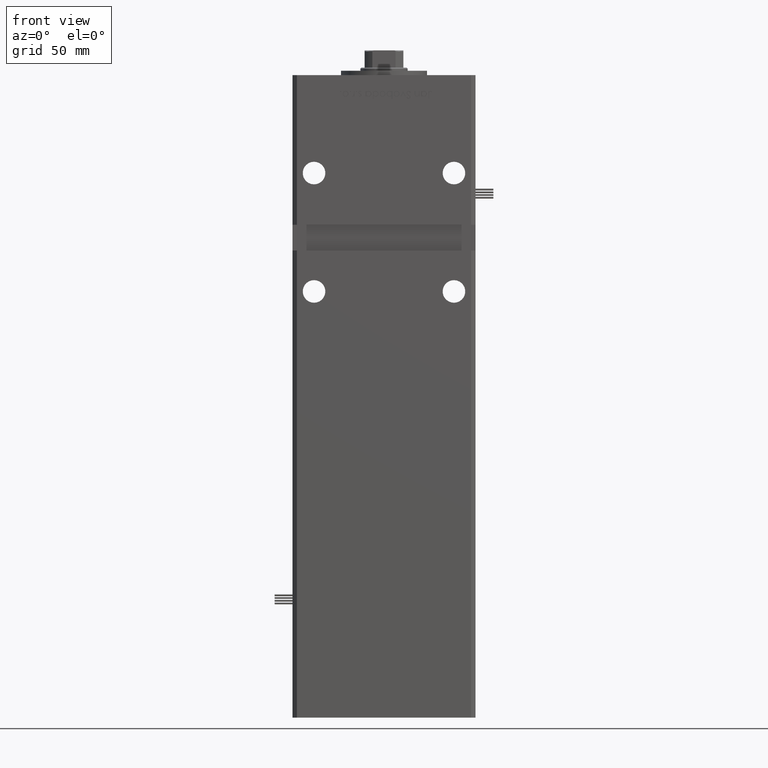
[diagram: clean part render]
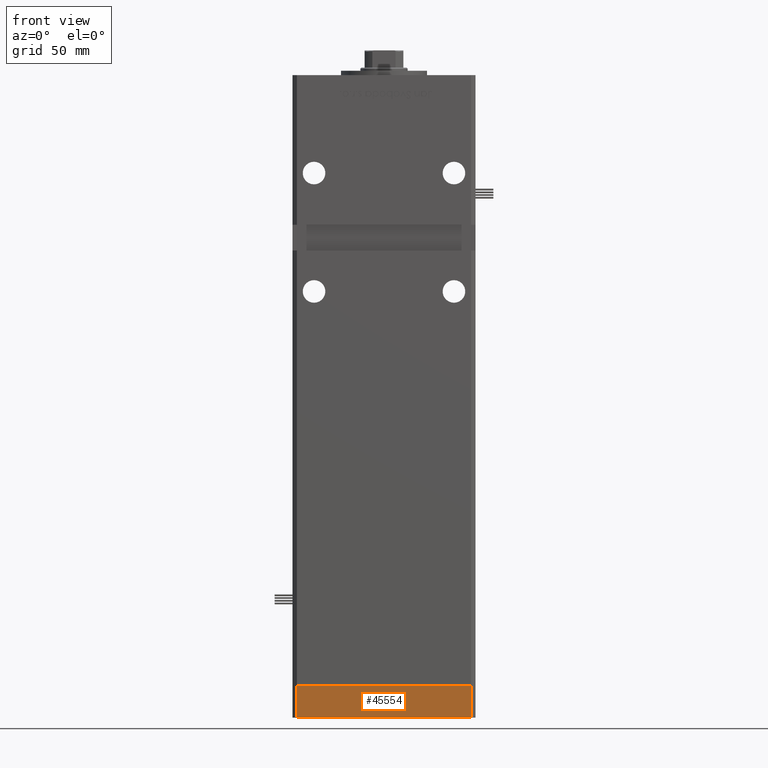
[diagram: same view with one face highlighted and labeled with its STEP entity id]
A machine part, front view. The second image highlights one B-rep face of the part: STEP entity #45554.
In plain terms, the highlighted planar face has unit normal (0, -1, -0).
Its self-contained STEP definition (entity closure, byte-faithful):
#924 = AXIS2_PLACEMENT_3D ( 'NONE', #45963, #37161, #41141 ) ;
#1198 = CARTESIAN_POINT ( 'NONE',  ( 40.50000000000000000, -37.50000000000000711, 0.000000000000000000 ) ) ;
#2256 = PLANE ( 'NONE',  #924 ) ;
#4447 = LINE ( 'NONE', #26303, #13938 ) ;
#7375 = VERTEX_POINT ( 'NONE', #46990 ) ;
#10950 = EDGE_CURVE ( 'NONE', #39779, #7375, #53250, .T. ) ;
#11338 = ORIENTED_EDGE ( 'NONE', *, *, #40592, .F. ) ;
#12088 = VECTOR ( 'NONE', #48841, 1000.000000000000000 ) ;
#13381 = LINE ( 'NONE', #53377, #12088 ) ;
#13938 = VECTOR ( 'NONE', #18354, 1000.000000000000000 ) ;
#14460 = VERTEX_POINT ( 'NONE', #35279 ) ;
#18354 = DIRECTION ( 'NONE',  ( 0.000000000000000000, 0.000000000000000000, 1.000000000000000000 ) ) ;
#26303 = CARTESIAN_POINT ( 'NONE',  ( 40.50000000000000000, -37.50000000000000711, -15.00000000000000000 ) ) ;
#26573 = CARTESIAN_POINT ( 'NONE',  ( -40.49999999999999289, -37.50000000000002132, -15.00000000000000000 ) ) ;
#29203 = CARTESIAN_POINT ( 'NONE',  ( -40.49999999999999289, -37.50000000000002132, -15.00000000000000000 ) ) ;
#31652 = DIRECTION ( 'NONE',  ( 1.000000000000000000, 1.713307136767217096E-16, 0.000000000000000000 ) ) ;
#34976 = DIRECTION ( 'NONE',  ( 1.000000000000000000, 1.713307136767217096E-16, 0.000000000000000000 ) ) ;
#35279 = CARTESIAN_POINT ( 'NONE',  ( -40.49999999999999289, -37.50000000000002132, 0.000000000000000000 ) ) ;
#35603 = EDGE_CURVE ( 'NONE', #14460, #42770, #38940, .T. ) ;
#37161 = DIRECTION ( 'NONE',  ( 1.713307136767217096E-16, -1.000000000000000000, 0.000000000000000000 ) ) ;
#38940 = LINE ( 'NONE', #44034, #50016 ) ;
#39779 = VERTEX_POINT ( 'NONE', #29203 ) ;
#40592 = EDGE_CURVE ( 'NONE', #39779, #14460, #13381, .T. ) ;
#41141 = DIRECTION ( 'NONE',  ( 1.000000000000000000, 1.713307136767217096E-16, 0.000000000000000000 ) ) ;
#41527 = EDGE_LOOP ( 'NONE', ( #44116, #11338, #47357, #51885 ) ) ;
#41967 = FACE_OUTER_BOUND ( 'NONE', #41527, .T. ) ;
#41990 = EDGE_CURVE ( 'NONE', #7375, #42770, #4447, .T. ) ;
#42770 = VERTEX_POINT ( 'NONE', #1198 ) ;
#44034 = CARTESIAN_POINT ( 'NONE',  ( -40.49999999999999289, -37.50000000000002132, 0.000000000000000000 ) ) ;
#44116 = ORIENTED_EDGE ( 'NONE', *, *, #35603, .F. ) ;
#45554 = ADVANCED_FACE ( 'NONE', ( #41967 ), #2256, .T. ) ;
#45963 = CARTESIAN_POINT ( 'NONE',  ( -40.49999999999999289, -37.50000000000002132, -15.00000000000000000 ) ) ;
#46834 = VECTOR ( 'NONE', #31652, 1000.000000000000000 ) ;
#46990 = CARTESIAN_POINT ( 'NONE',  ( 40.50000000000000000, -37.50000000000000711, -15.00000000000000000 ) ) ;
#47357 = ORIENTED_EDGE ( 'NONE', *, *, #10950, .T. ) ;
#48841 = DIRECTION ( 'NONE',  ( 0.000000000000000000, 0.000000000000000000, 1.000000000000000000 ) ) ;
#50016 = VECTOR ( 'NONE', #34976, 1000.000000000000000 ) ;
#51885 = ORIENTED_EDGE ( 'NONE', *, *, #41990, .T. ) ;
#53250 = LINE ( 'NONE', #26573, #46834 ) ;
#53377 = CARTESIAN_POINT ( 'NONE',  ( -40.49999999999999289, -37.50000000000002132, -15.00000000000000000 ) ) ;